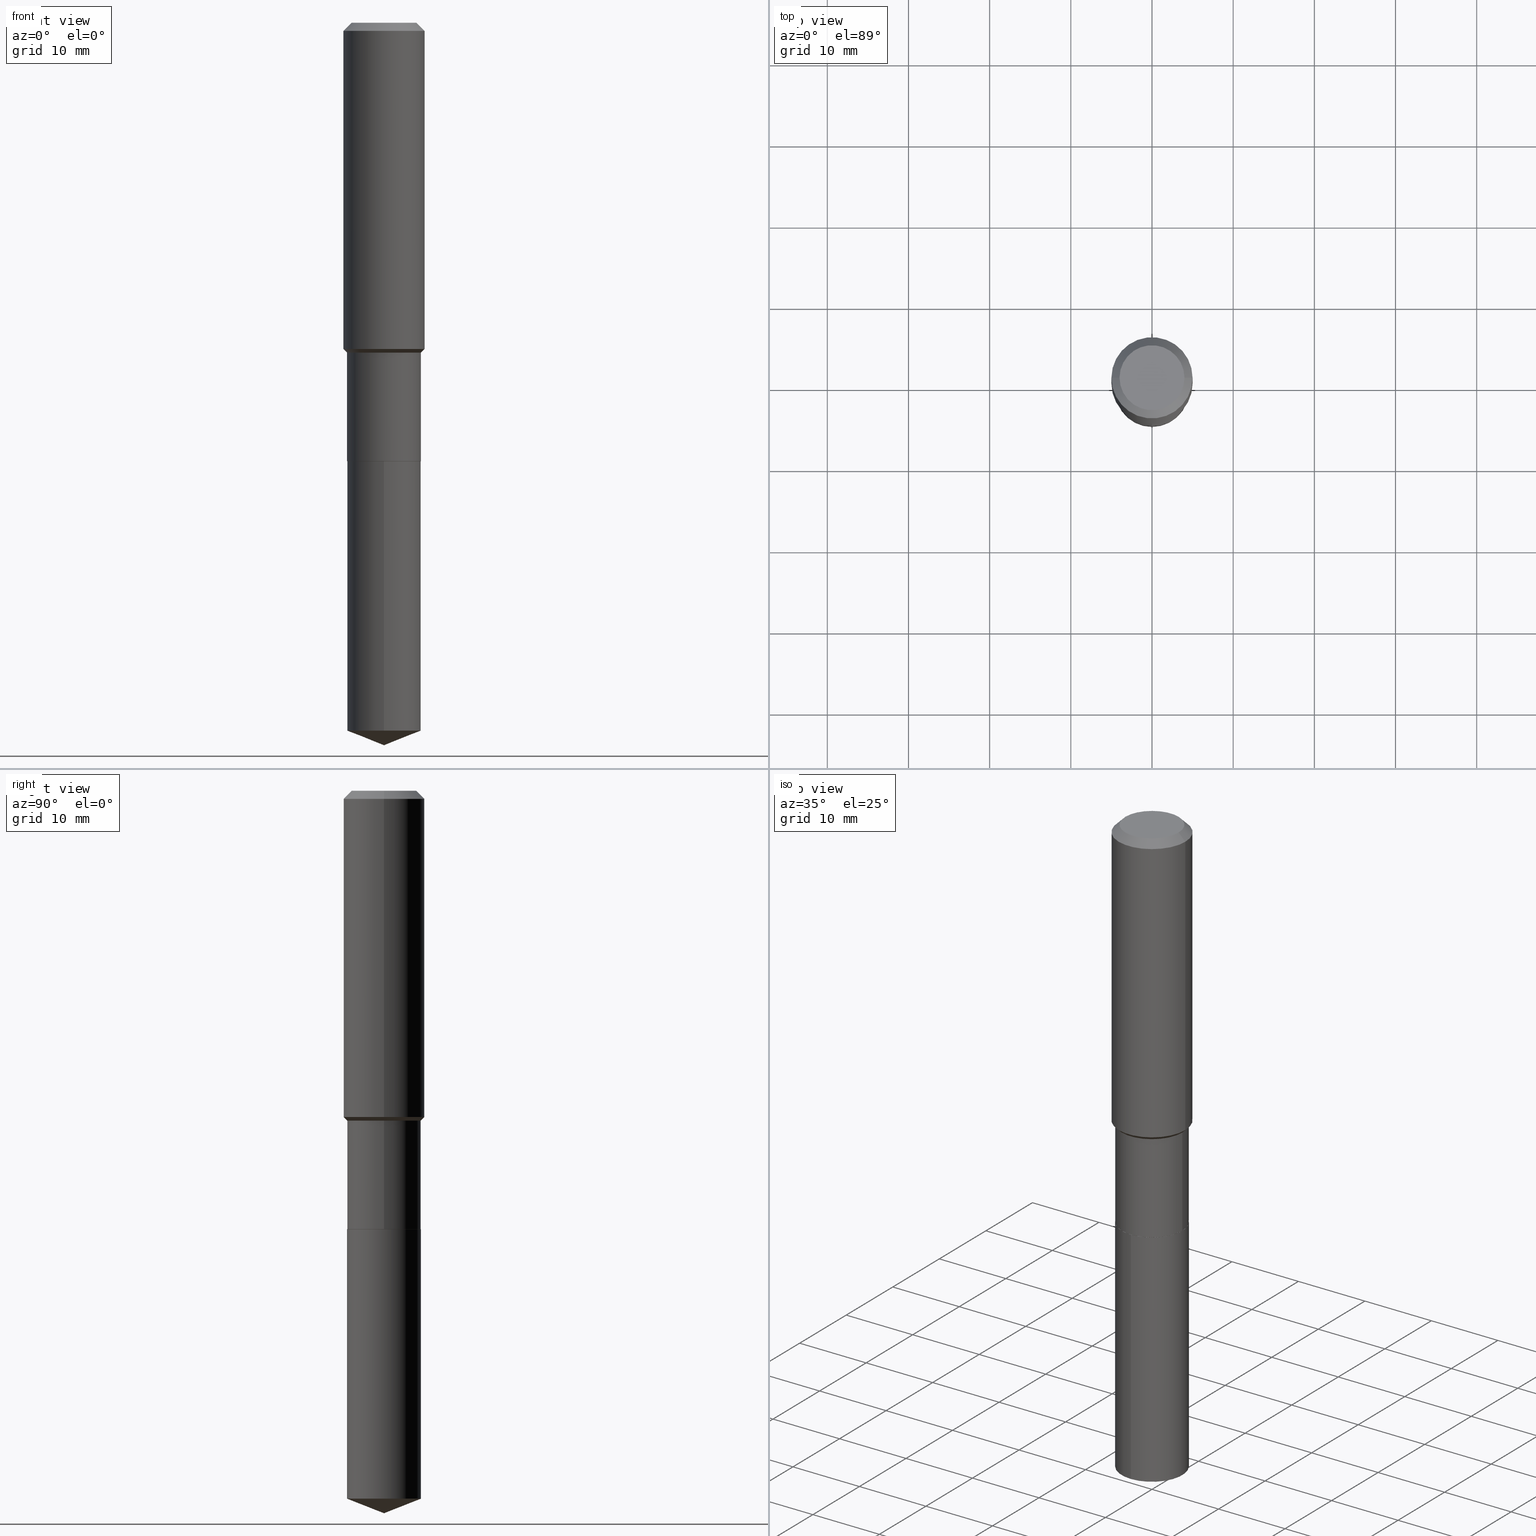
[diagram: canonical four-view strip — front | top / right | iso, engineering-drawing reading convention]
A machine part, canonical four-view strip (front | top / right | iso — engineering-drawing reading convention). The complete STEP part file that produces these views, byte-faithful:
ISO-10303-21;
HEADER;
FILE_DESCRIPTION (( 'STEP AP203' ),
    '1' );
FILE_NAME ('66461.STEP',
    '2024-04-24T23:09:21',
    ( '' ),
    ( '' ),
    'SwSTEP 2.0',
    'SolidWorks 2023',
    '' );
FILE_SCHEMA (( 'CONFIG_CONTROL_DESIGN' ));
ENDSEC;

DATA;
#1 = ORIENTED_EDGE ( 'NONE', *, *, #155, .T. ) ;
#2 = DIRECTION ( 'NONE',  ( -2.445468806185136597E-29, 3.491481338843145583E-15, 1.000000000000000000 ) ) ;
#3 = VERTEX_POINT ( 'NONE', #272 ) ;
#4 = DIRECTION ( 'NONE',  ( -6.982962677686265922E-15, -1.000000000000000000, 3.498627837350006195E-15 ) ) ;
#5 = CARTESIAN_POINT ( 'NONE',  ( 5.198822135068982087E-29, -7.422540178246643119E-15, -2.125899999999999679 ) ) ;
#6 = ORIENTED_EDGE ( 'NONE', *, *, #48, .T. ) ;
#7 = ORIENTED_EDGE ( 'NONE', *, *, #408, .T. ) ;
#8 = DIRECTION ( 'NONE',  ( 1.000000000000000000, -6.982962677686263555E-15, 0.000000000000000000 ) ) ;
#9 = EDGE_CURVE ( 'NONE', #251, #3, #194, .T. ) ;
#10 = VERTEX_POINT ( 'NONE', #343 ) ;
#11 = ORIENTED_EDGE ( 'NONE', *, *, #9, .F. ) ;
#12 = EDGE_LOOP ( 'NONE', ( #85, #350, #135 ) ) ;
#13 = CONICAL_SURFACE ( 'NONE', #42, 99.94676754583991851, 1.195550537616119291 ) ;
#14 = CARTESIAN_POINT ( 'NONE',  ( 9.627810689950954155E-31, -1.374596203102556547E-16, -0.03937000000000029365 ) ) ;
#15 = LINE ( 'NONE', #172, #57 ) ;
#16 = EDGE_LOOP ( 'NONE', ( #382, #208, #146 ) ) ;
#17 = AXIS2_PLACEMENT_3D ( 'NONE', #271, #312, #120 ) ;
#18 =( GEOMETRIC_REPRESENTATION_CONTEXT ( 3 ) GLOBAL_UNCERTAINTY_ASSIGNED_CONTEXT ( ( #435 ) ) GLOBAL_UNIT_ASSIGNED_CONTEXT ( ( #86, #434, #475 ) ) REPRESENTATION_CONTEXT ( 'NONE', 'WORKASPACE' ) );
#19 = DIRECTION ( 'NONE',  ( -2.445468806185136877E-29, 3.491481338843145188E-15, 1.000000000000000000 ) ) ;
#20 = CARTESIAN_POINT ( 'NONE',  ( 0.1791499999999999759, -1.250997763707494620E-15, 8.735670693838418171E-30 ) ) ;
#21 = ADVANCED_FACE ( 'NONE', ( #73 ), #388, .T. ) ;
#22 = VERTEX_POINT ( 'NONE', #314 ) ;
#23 = CARTESIAN_POINT ( 'NONE',  ( 1.272937311114303917E-15, 0.1791499999999926485, -2.125900000000000567 ) ) ;
#24 = MECHANICAL_CONTEXT ( 'NONE', #372, 'mechanical' ) ;
#25 = VERTEX_POINT ( 'NONE', #413 ) ;
#26 = CIRCLE ( 'NONE', #249, 0.1791500000000000314 ) ;
#27 = FACE_OUTER_BOUND ( 'NONE', #436, .T. ) ;
#28 = VECTOR ( 'NONE', #156, 39.37007874015748143 ) ;
#29 = ADVANCED_FACE ( 'NONE', ( #41 ), #35, .T. ) ;
#30 = APPROVAL ( #438, 'UNSPECIFIED' ) ;
#31 = CARTESIAN_POINT ( 'NONE',  ( -0.1786500000000000310, -6.150506353637112321E-15, -2.125899999999999679 ) ) ;
#32 = ORIENTED_EDGE ( 'NONE', *, *, #206, .T. ) ;
#33 = DIRECTION ( 'NONE',  ( -6.497071151882119836E-15, -0.9304175679820245737, 0.3665012267242972466 ) ) ;
#34 = DIRECTION ( 'NONE',  ( 2.445468806185136597E-29, -3.491481338843145583E-15, -1.000000000000000000 ) ) ;
#35 = CONICAL_SURFACE ( 'NONE', #243, 0.1968500000000000250, 0.7853981633974447263 ) ;
#36 = VECTOR ( 'NONE', #147, 39.37007874015748143 ) ;
#37 = DIRECTION ( 'NONE',  ( 1.000000000000000000, -6.982962677686266711E-15, 4.876176775795935793E-29 ) ) ;
#38 = CARTESIAN_POINT ( 'NONE',  ( 9.627810689950954155E-31, -1.374596203102556547E-16, -0.03937000000000029365 ) ) ;
#39 = FACE_OUTER_BOUND ( 'NONE', #77, .T. ) ;
#40 = DIRECTION ( 'NONE',  ( -2.445468806185136597E-29, 3.491481338843145583E-15, 1.000000000000000000 ) ) ;
#41 = FACE_OUTER_BOUND ( 'NONE', #188, .T. ) ;
#42 = AXIS2_PLACEMENT_3D ( 'NONE', #457, #78, #4 ) ;
#43 = CC_DESIGN_DATE_AND_TIME_ASSIGNMENT ( #187, #107, ( #264 ) ) ;
#44 = ORIENTED_EDGE ( 'NONE', *, *, #192, .F. ) ;
#45 = APPROVAL_DATE_TIME ( #205, #207 ) ;
#46 = CARTESIAN_POINT ( 'NONE',  ( -0.1574800000000000089, 1.168406772637159618E-15, 3.855188123707939751E-18 ) ) ;
#47 = DIRECTION ( 'NONE',  ( -2.445468806185136597E-29, 3.491481338843145583E-15, 1.000000000000000000 ) ) ;
#48 = EDGE_CURVE ( 'NONE', #22, #352, #142, .T. ) ;
#49 = CIRCLE ( 'NONE', #466, 0.1791500000000000314 ) ;
#50 = DIRECTION ( 'NONE',  ( -6.982962677686265922E-15, -1.000000000000000000, 3.498627837350006195E-15 ) ) ;
#51 = MANIFOLD_SOLID_BREP ( 'Body-Move/Copy2[2]', #290 ) ;
#52 = DIRECTION ( 'NONE',  ( 1.000000000000000000, -6.982962677686265922E-15, 0.000000000000000000 ) ) ;
#53 = CARTESIAN_POINT ( 'NONE',  ( 5.198822135068982087E-29, -7.422540178246643119E-15, -2.125899999999999679 ) ) ;
#54 = APPROVAL_STATUS ( 'not_yet_approved' ) ;
#55 = ADVANCED_BREP_SHAPE_REPRESENTATION ( '66461', ( #224, #51, #153 ), #18 ) ;
#56 = AXIS2_PLACEMENT_3D ( 'NONE', #389, #132, #252 ) ;
#57 = VECTOR ( 'NONE', #469, 39.37007874015748143 ) ;
#58 = DIRECTION ( 'NONE',  ( -2.445468806185136877E-29, 3.491481338843145188E-15, 1.000000000000000000 ) ) ;
#59 = PERSON_AND_ORGANIZATION ( #322, #218 ) ;
#60 = SECURITY_CLASSIFICATION ( '', '', #342 ) ;
#61 = DIRECTION ( 'NONE',  ( 1.000000000000000000, -6.982962677686267499E-15, 0.000000000000000000 ) ) ;
#62 = ORIENTED_EDGE ( 'NONE', *, *, #192, .T. ) ;
#63 = CARTESIAN_POINT ( 'NONE',  ( -0.1968500000000001082, 1.398703375343757985E-15, -9.682923725166787881E-30 ) ) ;
#64 = PERSON_AND_ORGANIZATION ( #322, #218 ) ;
#65 = ORIENTED_EDGE ( 'NONE', *, *, #83, .T. ) ;
#66 = CLOSED_SHELL ( 'NONE', ( #180, #409, #116, #376, #101 ) ) ;
#67 = CARTESIAN_POINT ( 'NONE',  ( 9.627810689950954155E-31, -1.374596203102556547E-16, -0.03937000000000029365 ) ) ;
#68 = LOCAL_TIME ( 19, 9, 21.00000000000000000, #220 ) ;
#69 = EDGE_LOOP ( 'NONE', ( #80, #423, #265, #226 ) ) ;
#70 = DIRECTION ( 'NONE',  ( -2.445468806185136597E-29, 3.491481338843145583E-15, 1.000000000000000000 ) ) ;
#71 = CARTESIAN_POINT ( 'NONE',  ( 0.1791499999999999482, -6.836669609588758122E-15, -1.599799999999999889 ) ) ;
#72 = EDGE_CURVE ( 'NONE', #288, #232, #26, .T. ) ;
#73 = FACE_OUTER_BOUND ( 'NONE', #273, .T. ) ;
#74 = ORIENTED_EDGE ( 'NONE', *, *, #83, .F. ) ;
#75 = PLANE ( 'NONE',  #17 ) ;
#76 = CIRCLE ( 'NONE', #143, 0.1786500000000000310 ) ;
#77 = EDGE_LOOP ( 'NONE', ( #111, #62, #149, #158 ) ) ;
#78 = DIRECTION ( 'NONE',  ( -2.445600057802036841E-29, 3.491293379057366203E-15, 1.000000000000000000 ) ) ;
#79 = FACE_OUTER_BOUND ( 'NONE', #297, .T. ) ;
#80 = ORIENTED_EDGE ( 'NONE', *, *, #293, .F. ) ;
#81 = DIRECTION ( 'NONE',  ( -1.000000000000000000, 6.982962677686265922E-15, 0.000000000000000000 ) ) ;
#82 = ADVANCED_FACE ( 'NONE', ( #79 ), #458, .F. ) ;
#83 = EDGE_CURVE ( 'NONE', #162, #160, #379, .T. ) ;
#84 = CARTESIAN_POINT ( 'NONE',  ( 3.912260996134981658E-29, -5.585671845881263700E-15, -1.599799999999999889 ) ) ;
#85 = ORIENTED_EDGE ( 'NONE', *, *, #425, .F. ) ;
#86 =( CONVERSION_BASED_UNIT ( 'INCH', #222 ) LENGTH_UNIT ( ) NAMED_UNIT ( #360 ) );
#87 = CIRCLE ( 'NONE', #184, 0.1791499999999999482 ) ;
#88 = PERSON_AND_ORGANIZATION ( #322, #218 ) ;
#89 = CYLINDRICAL_SURFACE ( 'NONE', #185, 0.1791500000000000314 ) ;
#90 = SHAPE_DEFINITION_REPRESENTATION ( #151, #55 ) ;
#91 = DIRECTION ( 'NONE',  ( 1.000000000000000000, -6.982962677686265133E-15, 0.000000000000000000 ) ) ;
#92 = CARTESIAN_POINT ( 'NONE',  ( 0.1968500000000001082, -1.374596203102542397E-15, 9.598753983154305062E-30 ) ) ;
#93 = VECTOR ( 'NONE', #426, 39.37007874015748143 ) ;
#94 = AXIS2_PLACEMENT_3D ( 'NONE', #14, #464, #320 ) ;
#95 = LOCAL_TIME ( 19, 9, 21.00000000000000000, #323 ) ;
#96 = CARTESIAN_POINT ( 'NONE',  ( 3.868976198265503885E-29, -5.523872626183740107E-15, -1.582099999999999840 ) ) ;
#97 = ORIENTED_EDGE ( 'NONE', *, *, #212, .F. ) ;
#98 = APPLICATION_PROTOCOL_DEFINITION ( 'international standard', 'config_control_design', 1994, #428 ) ;
#99 = EDGE_CURVE ( 'NONE', #160, #25, #309, .T. ) ;
#100 = PRODUCT_RELATED_PRODUCT_CATEGORY ( 'detail', '', ( #236 ) ) ;
#101 = ADVANCED_FACE ( 'NONE', ( #244 ), #75, .F. ) ;
#102 = CARTESIAN_POINT ( 'NONE',  ( -0.1786500000000000310, -6.153155580811223522E-15, -2.125899999999999679 ) ) ;
#103 = CIRCLE ( 'NONE', #126, 0.1968500000000002192 ) ;
#104 = LINE ( 'NONE', #328, #470 ) ;
#105 = ORIENTED_EDGE ( 'NONE', *, *, #136, .T. ) ;
#106 = CARTESIAN_POINT ( 'NONE',  ( -1.250997763707442752E-15, -0.1791500000000074422, -2.125899999999999235 ) ) ;
#107 = DATE_TIME_ROLE ( 'creation_date' ) ;
#108 = ORIENTED_EDGE ( 'NONE', *, *, #359, .T. ) ;
#109 = DIRECTION ( 'NONE',  ( 1.000000000000000000, -6.982962677686265922E-15, 0.000000000000000000 ) ) ;
#110 = DATE_AND_TIME ( #484, #385 ) ;
#111 = ORIENTED_EDGE ( 'NONE', *, *, #144, .T. ) ;
#112 = CARTESIAN_POINT ( 'NONE',  ( -1.250997763707410803E-15, -0.1791500000000119663, -3.433330938293583046 ) ) ;
#113 = AXIS2_PLACEMENT_3D ( 'NONE', #53, #214, #169 ) ;
#114 = DIRECTION ( 'NONE',  ( -2.445600057802036841E-29, 3.491293379057366203E-15, 1.000000000000000000 ) ) ;
#115 = VERTEX_POINT ( 'NONE', #241 ) ;
#116 = ADVANCED_FACE ( 'NONE', ( #242 ), #295, .T. ) ;
#117 = EDGE_CURVE ( 'NONE', #463, #166, #87, .T. ) ;
#118 = DIRECTION ( 'NONE',  ( -2.445468806185136597E-29, 3.491481338843145583E-15, 1.000000000000000000 ) ) ;
#119 = ORIENTED_EDGE ( 'NONE', *, *, #263, .T. ) ;
#120 = DIRECTION ( 'NONE',  ( 6.982962677686265922E-15, 1.000000000000000000, -3.491293379057366203E-15 ) ) ;
#121 = AXIS2_PLACEMENT_3D ( 'NONE', #167, #2, #415 ) ;
#122 = CARTESIAN_POINT ( 'NONE',  ( 8.568579986907819706E-29, -1.223394203829628348E-14, -3.503899999999999793 ) ) ;
#123 = DIRECTION ( 'NONE',  ( -2.438088387897960049E-29, 3.491481338843145188E-15, 1.000000000000000000 ) ) ;
#124 = EDGE_CURVE ( 'NONE', #115, #25, #471, .T. ) ;
#125 = DIRECTION ( 'NONE',  ( 1.000000000000000000, -6.982962677686265922E-15, 4.876176775795935793E-29 ) ) ;
#126 = AXIS2_PLACEMENT_3D ( 'NONE', #96, #261, #109 ) ;
#127 = EDGE_CURVE ( 'NONE', #411, #251, #248, .T. ) ;
#128 = DIRECTION ( 'NONE',  ( -2.445600057802036841E-29, 3.491293379057366203E-15, 1.000000000000000000 ) ) ;
#129 = CARTESIAN_POINT ( 'NONE',  ( 8.569138042532557080E-29, -1.223314287087910590E-14, -3.503899999999999793 ) ) ;
#130 = AXIS2_PLACEMENT_3D ( 'NONE', #390, #210, #91 ) ;
#131 = VECTOR ( 'NONE', #446, 39.37007874015747433 ) ;
#132 = DIRECTION ( 'NONE',  ( -2.445468806185136597E-29, 3.491481338843145583E-15, 1.000000000000000000 ) ) ;
#133 = PERSON_AND_ORGANIZATION ( #322, #218 ) ;
#134 = CC_DESIGN_DATE_AND_TIME_ASSIGNMENT ( #454, #421, ( #60 ) ) ;
#135 = ORIENTED_EDGE ( 'NONE', *, *, #48, .F. ) ;
#136 = EDGE_CURVE ( 'NONE', #411, #284, #344, .T. ) ;
#137 = DIRECTION ( 'NONE',  ( 2.438088387897960049E-29, -3.491481338843145188E-15, -1.000000000000000000 ) ) ;
#138 = PERSON_AND_ORGANIZATION ( #322, #218 ) ;
#139 = CARTESIAN_POINT ( 'NONE',  ( 5.197599400665889285E-29, -7.420794437577220826E-15, -2.125399999999999956 ) ) ;
#140 = CALENDAR_DATE ( 2024, 24, 4 ) ;
#141 = ORIENTED_EDGE ( 'NONE', *, *, #293, .T. ) ;
#142 = CIRCLE ( 'NONE', #319, 0.1791500000000000314 ) ;
#143 = AXIS2_PLACEMENT_3D ( 'NONE', #195, #315, #417 ) ;
#144 = EDGE_CURVE ( 'NONE', #166, #463, #353, .T. ) ;
#145 = DIRECTION ( 'NONE',  ( -2.445600057802036841E-29, 3.491293379057366203E-15, 1.000000000000000000 ) ) ;
#146 = ORIENTED_EDGE ( 'NONE', *, *, #263, .F. ) ;
#147 = DIRECTION ( 'NONE',  ( -0.7071067811866199593, 7.493145998870616062E-15, 0.7071067811864750752 ) ) ;
#148 = DIRECTION ( 'NONE',  ( 1.000000000000000000, 0.000000000000000000, 0.000000000000000000 ) ) ;
#149 = ORIENTED_EDGE ( 'NONE', *, *, #206, .F. ) ;
#150 = DIRECTION ( 'NONE',  ( -1.000000000000000000, 6.982962677686265922E-15, 0.000000000000000000 ) ) ;
#151 = PRODUCT_DEFINITION_SHAPE ( 'NONE', 'NONE',  #264 ) ;
#152 = DIRECTION ( 'NONE',  ( -2.445468806185136597E-29, 3.491481338843145583E-15, 1.000000000000000000 ) ) ;
#153 = AXIS2_PLACEMENT_3D ( 'NONE', #333, #427, #148 ) ;
#154 = APPROVAL_PERSON_ORGANIZATION ( #88, #207, #246 ) ;
#155 = EDGE_CURVE ( 'NONE', #374, #115, #403, .T. ) ;
#156 = DIRECTION ( 'NONE',  ( 0.7071067811865489050, -2.468850131082271655E-15, 0.7071067811865461294 ) ) ;
#157 = DIRECTION ( 'NONE',  ( -6.982962677686265133E-15, -1.000000000000000000, 3.049788438363675772E-15 ) ) ;
#158 = ORIENTED_EDGE ( 'NONE', *, *, #408, .F. ) ;
#159 = PERSON_AND_ORGANIZATION_ROLE ( 'design_supplier' ) ;
#160 = VERTEX_POINT ( 'NONE', #387 ) ;
#161 = ORIENTED_EDGE ( 'NONE', *, *, #280, .T. ) ;
#162 = VERTEX_POINT ( 'NONE', #46 ) ;
#163 = EDGE_CURVE ( 'NONE', #232, #288, #456, .T. ) ;
#164 = DIRECTION ( 'NONE',  ( -2.445468806185136597E-29, 3.491481338843145583E-15, 1.000000000000000000 ) ) ;
#165 = VECTOR ( 'NONE', #291, 39.37007874015748143 ) ;
#166 = VERTEX_POINT ( 'NONE', #289 ) ;
#167 = CARTESIAN_POINT ( 'NONE',  ( 5.198822135068982087E-29, -7.422540178246643119E-15, -2.125899999999999679 ) ) ;
#168 = EDGE_LOOP ( 'NONE', ( #65, #285 ) ) ;
#169 = DIRECTION ( 'NONE',  ( -6.982962677686265133E-15, -1.000000000000000000, 3.049788438363675772E-15 ) ) ;
#170 = ADVANCED_FACE ( 'NONE', ( #213 ), #356, .T. ) ;
#171 = AXIS2_PLACEMENT_3D ( 'NONE', #437, #70, #332 ) ;
#172 = CARTESIAN_POINT ( 'NONE',  ( -0.1791499999999999482, -4.312734534767044782E-15, -1.599799999999999889 ) ) ;
#173 = CC_DESIGN_PERSON_AND_ORGANIZATION_ASSIGNMENT ( #336, #234, ( #60 ) ) ;
#174 = EDGE_CURVE ( 'NONE', #10, #25, #364, .T. ) ;
#175 = APPROVAL_DATE_TIME ( #367, #30 ) ;
#176 = VECTOR ( 'NONE', #58, 39.37007874015748143 ) ;
#177 = FACE_OUTER_BOUND ( 'NONE', #168, .T. ) ;
#178 = FACE_OUTER_BOUND ( 'NONE', #199, .T. ) ;
#179 = ORIENTED_EDGE ( 'NONE', *, *, #280, .F. ) ;
#180 = ADVANCED_FACE ( 'NONE', ( #357 ), #89, .T. ) ;
#181 = CARTESIAN_POINT ( 'NONE',  ( 9.627810689950954155E-31, -1.374596203102556547E-16, -0.03937000000000029365 ) ) ;
#182 = PERSON_AND_ORGANIZATION_ROLE ( 'design_owner' ) ;
#183 = ORIENTED_EDGE ( 'NONE', *, *, #211, .T. ) ;
#184 = AXIS2_PLACEMENT_3D ( 'NONE', #362, #321, #282 ) ;
#185 = AXIS2_PLACEMENT_3D ( 'NONE', #468, #128, #287 ) ;
#186 = CYLINDRICAL_SURFACE ( 'NONE', #171, 0.1791499999999999759 ) ;
#187 = DATE_AND_TIME ( #140, #95 ) ;
#188 = EDGE_LOOP ( 'NONE', ( #405, #74, #474, #410 ) ) ;
#189 = CARTESIAN_POINT ( 'NONE',  ( 0.000000000000000000, 0.000000000000000000, 0.000000000000000000 ) ) ;
#190 = ORIENTED_EDGE ( 'NONE', *, *, #127, .F. ) ;
#191 = APPROVAL ( #54, 'UNSPECIFIED' ) ;
#192 = EDGE_CURVE ( 'NONE', #463, #374, #15, .T. ) ;
#193 = EDGE_LOOP ( 'NONE', ( #97, #1, #439, #257 ) ) ;
#194 = CIRCLE ( 'NONE', #442, 0.1791500000000000314 ) ;
#195 = CARTESIAN_POINT ( 'NONE',  ( 5.198822135068982087E-29, -7.422540178246643119E-15, -2.125899999999999679 ) ) ;
#196 = COORDINATED_UNIVERSAL_TIME_OFFSET ( 5, 0, .BEHIND. ) ;
#197 = AXIS2_PLACEMENT_3D ( 'NONE', #67, #429, #150 ) ;
#198 = APPROVAL_PERSON_ORGANIZATION ( #431, #191, #472 ) ;
#199 = EDGE_LOOP ( 'NONE', ( #444, #6, #161, #348 ) ) ;
#200 = DIRECTION ( 'NONE',  ( 1.000000000000000000, -6.982962677686265133E-15, 0.000000000000000000 ) ) ;
#201 = ORIENTED_EDGE ( 'NONE', *, *, #303, .F. ) ;
#202 = AXIS2_PLACEMENT_3D ( 'NONE', #84, #270, #200 ) ;
#203 = ORIENTED_EDGE ( 'NONE', *, *, #212, .T. ) ;
#204 = VERTEX_POINT ( 'NONE', #129 ) ;
#205 = DATE_AND_TIME ( #247, #338 ) ;
#206 = EDGE_CURVE ( 'NONE', #115, #374, #103, .T. ) ;
#207 = APPROVAL ( #461, 'UNSPECIFIED' ) ;
#208 = ORIENTED_EDGE ( 'NONE', *, *, #425, .T. ) ;
#209 = AXIS2_PLACEMENT_3D ( 'NONE', #452, #118, #460 ) ;
#210 = DIRECTION ( 'NONE',  ( -2.445468806185136597E-29, 3.491481338843145583E-15, 1.000000000000000000 ) ) ;
#211 = EDGE_CURVE ( 'NONE', #22, #288, #256, .T. ) ;
#212 = EDGE_CURVE ( 'NONE', #374, #10, #402, .T. ) ;
#213 = FACE_OUTER_BOUND ( 'NONE', #216, .T. ) ;
#214 = DIRECTION ( 'NONE',  ( -2.445600057802036841E-29, 3.491293379057366203E-15, 1.000000000000000000 ) ) ;
#215 = PERSON_AND_ORGANIZATION_ROLE ( 'creator' ) ;
#216 = EDGE_LOOP ( 'NONE', ( #32, #203, #239, #358 ) ) ;
#217 = AXIS2_PLACEMENT_3D ( 'NONE', #5, #164, #8 ) ;
#218 = ORGANIZATION ( 'UNSPECIFIED', 'UNSPECIFIED', '' ) ;
#219 = LINE ( 'NONE', #20, #176 ) ;
#220 = COORDINATED_UNIVERSAL_TIME_OFFSET ( 5, 0, .BEHIND. ) ;
#221 = ADVANCED_FACE ( 'NONE', ( #395 ), #396, .T. ) ;
#222 = LENGTH_MEASURE_WITH_UNIT ( LENGTH_MEASURE( 0.02539999999999999897 ), #335 );
#223 = FACE_OUTER_BOUND ( 'NONE', #278, .T. ) ;
#224 = MANIFOLD_SOLID_BREP ( 'Body-Move/Copy2[1]', #66 ) ;
#225 = CARTESIAN_POINT ( 'NONE',  ( 1.272937311114271377E-15, 0.1791499999999926207, -2.125900000000000567 ) ) ;
#226 = ORIENTED_EDGE ( 'NONE', *, *, #266, .F. ) ;
#227 = AXIS2_PLACEMENT_3D ( 'NONE', #383, #351, #50 ) ;
#228 = AXIS2_PLACEMENT_3D ( 'NONE', #369, #269, #373 ) ;
#229 = LINE ( 'NONE', #302, #165 ) ;
#230 = ORIENTED_EDGE ( 'NONE', *, *, #303, .T. ) ;
#231 = CARTESIAN_POINT ( 'NONE',  ( -0.1791499999999999759, 1.272937311114219312E-15, -8.812272214191663486E-30 ) ) ;
#232 = VERTEX_POINT ( 'NONE', #106 ) ;
#233 = FACE_OUTER_BOUND ( 'NONE', #16, .T. ) ;
#234 = PERSON_AND_ORGANIZATION_ROLE ( 'classification_officer' ) ;
#235 = DIRECTION ( 'NONE',  ( -6.982962677686265133E-15, -1.000000000000000000, 3.049788438363675772E-15 ) ) ;
#236 = PRODUCT ( '66461', '66461', '', ( #24 ) ) ;
#237 = DIRECTION ( 'NONE',  ( -6.982962677686265133E-15, -1.000000000000000000, 3.049788438363675772E-15 ) ) ;
#238 = AXIS2_PLACEMENT_3D ( 'NONE', #381, #152, #37 ) ;
#239 = ORIENTED_EDGE ( 'NONE', *, *, #347, .F. ) ;
#240 = LINE ( 'NONE', #122, #268 ) ;
#241 = CARTESIAN_POINT ( 'NONE',  ( 0.1968500000000002192, -6.898468829286282504E-15, -1.582099999999999840 ) ) ;
#242 = FACE_OUTER_BOUND ( 'NONE', #12, .T. ) ;
#243 = AXIS2_PLACEMENT_3D ( 'NONE', #38, #34, #81 ) ;
#244 = FACE_OUTER_BOUND ( 'NONE', #479, .T. ) ;
#245 = ORIENTED_EDGE ( 'NONE', *, *, #359, .F. ) ;
#246 = APPROVAL_ROLE ( '' ) ;
#247 = CALENDAR_DATE ( 2024, 24, 4 ) ;
#248 = LINE ( 'NONE', #422, #93 ) ;
#249 = AXIS2_PLACEMENT_3D ( 'NONE', #349, #448, #235 ) ;
#250 = VECTOR ( 'NONE', #145, 39.37007874015748143 ) ;
#251 = VERTEX_POINT ( 'NONE', #433 ) ;
#252 = DIRECTION ( 'NONE',  ( 1.000000000000000000, -6.982962677686263555E-15, 0.000000000000000000 ) ) ;
#253 = DIRECTION ( 'NONE',  ( -1.000000000000000000, 6.982962677686265922E-15, -4.876176775795935793E-29 ) ) ;
#254 = AXIS2_PLACEMENT_3D ( 'NONE', #189, #334, #430 ) ;
#255 = CC_DESIGN_APPROVAL ( #191, ( #365 ) ) ;
#256 = LINE ( 'NONE', #225, #250 ) ;
#257 = ORIENTED_EDGE ( 'NONE', *, *, #174, .F. ) ;
#258 = DIRECTION ( 'NONE',  ( -6.982962677686265133E-15, -1.000000000000000000, 3.049788438363675772E-15 ) ) ;
#259 = APPLICATION_PROTOCOL_DEFINITION ( 'international standard', 'config_control_design', 1994, #372 ) ;
#260 = EDGE_LOOP ( 'NONE', ( #119, #183, #449, #179 ) ) ;
#261 = DIRECTION ( 'NONE',  ( -2.445468806185136597E-29, 3.491481338843145583E-15, 1.000000000000000000 ) ) ;
#262 = APPROVAL_DATE_TIME ( #110, #191 ) ;
#263 = EDGE_CURVE ( 'NONE', #352, #22, #49, .T. ) ;
#264 = PRODUCT_DEFINITION ( 'UNKNOWN', '', #365, #485 ) ;
#265 = ORIENTED_EDGE ( 'NONE', *, *, #127, .T. ) ;
#266 = EDGE_CURVE ( 'NONE', #3, #251, #296, .T. ) ;
#267 = AXIS2_PLACEMENT_3D ( 'NONE', #277, #416, #378 ) ;
#268 = VECTOR ( 'NONE', #33, 39.37007874015748854 ) ;
#269 = DIRECTION ( 'NONE',  ( -2.445468806185136597E-29, 3.491481338843145583E-15, 1.000000000000000000 ) ) ;
#270 = DIRECTION ( 'NONE',  ( -2.445468806185136597E-29, 3.491481338843145583E-15, 1.000000000000000000 ) ) ;
#271 = CARTESIAN_POINT ( 'NONE',  ( 5.198822135068982087E-29, -7.422540178246643119E-15, -2.125899999999999679 ) ) ;
#272 = CARTESIAN_POINT ( 'NONE',  ( -0.1791500000000000314, -5.230295830615023345E-15, -2.125399999999999956 ) ) ;
#273 = EDGE_LOOP ( 'NONE', ( #105, #141, #11, #190 ) ) ;
#274 = CARTESIAN_POINT ( 'NONE',  ( 5.198822135068982087E-29, -7.422540178246643119E-15, -2.125899999999999679 ) ) ;
#275 = ORIENTED_EDGE ( 'NONE', *, *, #163, .T. ) ;
#276 = LINE ( 'NONE', #71, #28 ) ;
#277 = CARTESIAN_POINT ( 'NONE',  ( -9.427742298522567634E-47, 1.346031739168368355E-32, 3.855188123715870730E-18 ) ) ;
#278 = EDGE_LOOP ( 'NONE', ( #419, #108, #401, #201 ) ) ;
#279 = CC_DESIGN_PERSON_AND_ORGANIZATION_ASSIGNMENT ( #64, #182, ( #236 ) ) ;
#280 = EDGE_CURVE ( 'NONE', #352, #232, #104, .T. ) ;
#281 = VECTOR ( 'NONE', #418, 39.37007874015748143 ) ;
#282 = DIRECTION ( 'NONE',  ( 1.000000000000000000, -6.982962677686265133E-15, 0.000000000000000000 ) ) ;
#283 = AXIS2_PLACEMENT_3D ( 'NONE', #393, #286, #52 ) ;
#284 = VERTEX_POINT ( 'NONE', #31 ) ;
#285 = ORIENTED_EDGE ( 'NONE', *, *, #453, .T. ) ;
#286 = DIRECTION ( 'NONE',  ( -2.445468806185136597E-29, 3.491481338843145583E-15, 1.000000000000000000 ) ) ;
#287 = DIRECTION ( 'NONE',  ( -6.982962677686265133E-15, -1.000000000000000000, 3.049788438363675772E-15 ) ) ;
#288 = VERTEX_POINT ( 'NONE', #23 ) ;
#289 = CARTESIAN_POINT ( 'NONE',  ( 0.1791499999999999482, -6.836669609588758122E-15, -1.599799999999999889 ) ) ;
#290 = CLOSED_SHELL ( 'NONE', ( #21, #221, #170, #486, #340, #292, #317, #392, #29, #361, #82, #398 ) ) ;
#291 = DIRECTION ( 'NONE',  ( -0.7071067811865450192, 2.468850131082230634E-15, -0.7071067811865500152 ) ) ;
#292 = ADVANCED_FACE ( 'NONE', ( #27 ), #186, .T. ) ;
#293 = EDGE_CURVE ( 'NONE', #284, #3, #397, .T. ) ;
#294 = FACE_OUTER_BOUND ( 'NONE', #384, .T. ) ;
#295 = CONICAL_SURFACE ( 'NONE', #227, 99.94676754583991851, 1.195550537616119291 ) ;
#296 = CIRCLE ( 'NONE', #404, 0.1791500000000000314 ) ;
#297 = EDGE_LOOP ( 'NONE', ( #407, #459 ) ) ;
#298 = CC_DESIGN_APPROVAL ( #207, ( #60 ) ) ;
#299 = DIRECTION ( 'NONE',  ( -2.445468806185136877E-29, 3.491481338843145188E-15, 1.000000000000000000 ) ) ;
#300 = ORIENTED_EDGE ( 'NONE', *, *, #155, .F. ) ;
#301 = EDGE_CURVE ( 'NONE', #162, #10, #229, .T. ) ;
#302 = CARTESIAN_POINT ( 'NONE',  ( -0.1968500000000000250, 1.237136582792286225E-15, -0.03937000000000029365 ) ) ;
#303 = EDGE_CURVE ( 'NONE', #251, #166, #219, .T. ) ;
#304 = DIRECTION ( 'NONE',  ( -2.445468806185136597E-29, 3.491481338843145583E-15, 1.000000000000000000 ) ) ;
#305 = CONICAL_SURFACE ( 'NONE', #202, 0.1791499999999999482, 0.7853981633974502774 ) ;
#306 = LINE ( 'NONE', #377, #131 ) ;
#307 = CARTESIAN_POINT ( 'NONE',  ( 8.396275313331941600E-29, -1.198716515668579060E-14, -3.433330938293583490 ) ) ;
#308 = FACE_OUTER_BOUND ( 'NONE', #69, .T. ) ;
#309 = LINE ( 'NONE', #451, #281 ) ;
#310 = ORIENTED_EDGE ( 'NONE', *, *, #99, .T. ) ;
#311 = CARTESIAN_POINT ( 'NONE',  ( -0.1791499999999999482, -5.230295830615023345E-15, -1.599799999999999889 ) ) ;
#312 = DIRECTION ( 'NONE',  ( 2.445600057802036561E-29, -3.491293379057366203E-15, -1.000000000000000000 ) ) ;
#313 = ORIENTED_EDGE ( 'NONE', *, *, #72, .T. ) ;
#314 = CARTESIAN_POINT ( 'NONE',  ( 1.272937311114303326E-15, 0.1791499999999880688, -3.433330938293583934 ) ) ;
#315 = DIRECTION ( 'NONE',  ( -2.445468806185136597E-29, 3.491481338843145583E-15, 1.000000000000000000 ) ) ;
#316 = DIRECTION ( 'NONE',  ( 1.000000000000000000, -6.982962677686267499E-15, 0.000000000000000000 ) ) ;
#317 = ADVANCED_FACE ( 'NONE', ( #294 ), #481, .T. ) ;
#318 = CARTESIAN_POINT ( 'NONE',  ( 0.000000000000000000, 0.000000000000000000, 0.000000000000000000 ) ) ;
#319 = AXIS2_PLACEMENT_3D ( 'NONE', #307, #462, #157 ) ;
#320 = DIRECTION ( 'NONE',  ( 1.000000000000000000, -6.982962677686265922E-15, 0.000000000000000000 ) ) ;
#321 = DIRECTION ( 'NONE',  ( -2.445468806185136597E-29, 3.491481338843145583E-15, 1.000000000000000000 ) ) ;
#322 = PERSON ( 'UNSPECIFIED', 'UNSPECIFIED', 'UNSPECIFIED', ('UNSPECIFIED'), ('UNSPECIFIED'), ('UNSPECIFIED') ) ;
#323 = COORDINATED_UNIVERSAL_TIME_OFFSET ( 5, 0, .BEHIND. ) ;
#324 = AXIS2_PLACEMENT_3D ( 'NONE', #476, #137, #253 ) ;
#325 = PLANE ( 'NONE',  #324 ) ;
#326 = CYLINDRICAL_SURFACE ( 'NONE', #424, 0.1791500000000000314 ) ;
#327 = PERSON_AND_ORGANIZATION_ROLE ( 'creator' ) ;
#328 = CARTESIAN_POINT ( 'NONE',  ( -1.250997763707442752E-15, -0.1791500000000074422, -2.125899999999999235 ) ) ;
#329 = CALENDAR_DATE ( 2024, 24, 4 ) ;
#330 = AXIS2_PLACEMENT_3D ( 'NONE', #181, #304, #440 ) ;
#331 = APPROVAL_PERSON_ORGANIZATION ( #138, #30, #394 ) ;
#332 = DIRECTION ( 'NONE',  ( 1.000000000000000000, -6.982962677686267499E-15, 4.876176775795935793E-29 ) ) ;
#333 = CARTESIAN_POINT ( 'NONE',  ( 0.000000000000000000, 0.000000000000000000, 0.000000000000000000 ) ) ;
#334 = DIRECTION ( 'NONE',  ( -2.445468806185136597E-29, 3.491481338843145583E-15, 1.000000000000000000 ) ) ;
#335 =( LENGTH_UNIT ( ) NAMED_UNIT ( * ) SI_UNIT ( $, .METRE. ) );
#336 = PERSON_AND_ORGANIZATION ( #322, #218 ) ;
#337 = AXIS2_PLACEMENT_3D ( 'NONE', #318, #47, #355 ) ;
#338 = LOCAL_TIME ( 19, 9, 21.00000000000000000, #386 ) ;
#339 = CARTESIAN_POINT ( 'NONE',  ( 5.197599400665889285E-29, -7.420794437577220826E-15, -2.125399999999999956 ) ) ;
#340 = ADVANCED_FACE ( 'NONE', ( #223 ), #487, .T. ) ;
#341 = CYLINDRICAL_SURFACE ( 'NONE', #238, 0.1968500000000001082 ) ;
#342 = SECURITY_CLASSIFICATION_LEVEL ( 'unclassified' ) ;
#343 = CARTESIAN_POINT ( 'NONE',  ( -0.1968500000000000250, -1.431962747903239464E-15, -0.03937000000000029365 ) ) ;
#344 = CIRCLE ( 'NONE', #56, 0.1786500000000000310 ) ;
#345 = CC_DESIGN_PERSON_AND_ORGANIZATION_ASSIGNMENT ( #59, #327, ( #264 ) ) ;
#346 = FACE_OUTER_BOUND ( 'NONE', #193, .T. ) ;
#347 = EDGE_CURVE ( 'NONE', #25, #10, #354, .T. ) ;
#348 = ORIENTED_EDGE ( 'NONE', *, *, #72, .F. ) ;
#349 = CARTESIAN_POINT ( 'NONE',  ( 5.198822135068982087E-29, -7.422540178246643119E-15, -2.125899999999999679 ) ) ;
#350 = ORIENTED_EDGE ( 'NONE', *, *, #465, .T. ) ;
#351 = DIRECTION ( 'NONE',  ( -2.445600057802036841E-29, 3.491293379057366203E-15, 1.000000000000000000 ) ) ;
#352 = VERTEX_POINT ( 'NONE', #112 ) ;
#353 = CIRCLE ( 'NONE', #130, 0.1791499999999999482 ) ;
#354 = CIRCLE ( 'NONE', #330, 0.1968500000000000250 ) ;
#355 = DIRECTION ( 'NONE',  ( 1.000000000000000000, -6.982962677686266711E-15, 4.876176775795935793E-29 ) ) ;
#356 = CYLINDRICAL_SURFACE ( 'NONE', #337, 0.1968500000000001082 ) ;
#357 = FACE_OUTER_BOUND ( 'NONE', #260, .T. ) ;
#358 = ORIENTED_EDGE ( 'NONE', *, *, #124, .F. ) ;
#359 = EDGE_CURVE ( 'NONE', #3, #463, #406, .T. ) ;
#360 = DIMENSIONAL_EXPONENTS ( 1.000000000000000000, 0.000000000000000000, 0.000000000000000000, 0.000000000000000000, 0.000000000000000000, 0.000000000000000000, 0.000000000000000000 ) ;
#361 = ADVANCED_FACE ( 'NONE', ( #177 ), #325, .F. ) ;
#362 = CARTESIAN_POINT ( 'NONE',  ( 3.912260996134981658E-29, -5.585671845881263700E-15, -1.599799999999999889 ) ) ;
#363 = PERSON_AND_ORGANIZATION ( #322, #218 ) ;
#364 = CIRCLE ( 'NONE', #94, 0.1968500000000000250 ) ;
#365 = PRODUCT_DEFINITION_FORMATION_WITH_SPECIFIED_SOURCE ( 'ANY', '', #236, .NOT_KNOWN. ) ;
#366 = CARTESIAN_POINT ( 'NONE',  ( -0.1968500000000002192, -4.125169250839980741E-15, -1.582099999999999840 ) ) ;
#367 = DATE_AND_TIME ( #329, #68 ) ;
#368 = ORIENTED_EDGE ( 'NONE', *, *, #117, .T. ) ;
#369 = CARTESIAN_POINT ( 'NONE',  ( 3.912260996134981658E-29, -5.585671845881263700E-15, -1.599799999999999889 ) ) ;
#370 = DIRECTION ( 'NONE',  ( -2.445600057802036841E-29, 3.491293379057366203E-15, 1.000000000000000000 ) ) ;
#371 = CC_DESIGN_APPROVAL ( #30, ( #264 ) ) ;
#372 = APPLICATION_CONTEXT ( 'configuration controlled 3d designs of mechanical parts and assemblies' ) ;
#373 = DIRECTION ( 'NONE',  ( 1.000000000000000000, -6.982962677686265133E-15, 0.000000000000000000 ) ) ;
#374 = VERTEX_POINT ( 'NONE', #366 ) ;
#375 = ORIENTED_EDGE ( 'NONE', *, *, #301, .F. ) ;
#376 = ADVANCED_FACE ( 'NONE', ( #178 ), #326, .T. ) ;
#377 = CARTESIAN_POINT ( 'NONE',  ( 8.569142936021653677E-29, -1.223314287087910590E-14, -3.503899999999999793 ) ) ;
#378 = DIRECTION ( 'NONE',  ( 1.000000000000000000, -6.982962677686265922E-15, 4.876223630392693006E-29 ) ) ;
#379 = CIRCLE ( 'NONE', #267, 0.1574800000000000089 ) ;
#380 = VECTOR ( 'NONE', #299, 39.37007874015748143 ) ;
#381 = CARTESIAN_POINT ( 'NONE',  ( 0.000000000000000000, 0.000000000000000000, 0.000000000000000000 ) ) ;
#382 = ORIENTED_EDGE ( 'NONE', *, *, #465, .F. ) ;
#383 = CARTESIAN_POINT ( 'NONE',  ( -8.771460782787969861E-28, 1.252189527838912910E-13, 35.86617874015747987 ) ) ;
#384 = EDGE_LOOP ( 'NONE', ( #44, #368, #7, #300 ) ) ;
#385 = LOCAL_TIME ( 19, 9, 21.00000000000000000, #477 ) ;
#386 = COORDINATED_UNIVERSAL_TIME_OFFSET ( 5, 0, .BEHIND. ) ;
#387 = CARTESIAN_POINT ( 'NONE',  ( 0.1574800000000000089, -1.284169937930321189E-15, 3.855188123724205385E-18 ) ) ;
#388 = CONICAL_SURFACE ( 'NONE', #217, 0.1786500000000000310, 0.7853981633975507526 ) ;
#389 = CARTESIAN_POINT ( 'NONE',  ( 5.198822135068982087E-29, -7.422540178246643119E-15, -2.125899999999999679 ) ) ;
#390 = CARTESIAN_POINT ( 'NONE',  ( 3.912260996134981658E-29, -5.585671845881263700E-15, -1.599799999999999889 ) ) ;
#391 = CC_DESIGN_PERSON_AND_ORGANIZATION_ASSIGNMENT ( #363, #159, ( #365 ) ) ;
#392 = ADVANCED_FACE ( 'NONE', ( #346 ), #341, .T. ) ;
#393 = CARTESIAN_POINT ( 'NONE',  ( 3.868976198265503885E-29, -5.523872626183740107E-15, -1.582099999999999840 ) ) ;
#394 = APPROVAL_ROLE ( '' ) ;
#395 = FACE_OUTER_BOUND ( 'NONE', #399, .T. ) ;
#396 = CONICAL_SURFACE ( 'NONE', #197, 0.1968500000000000250, 0.7853981633974447263 ) ;
#397 = LINE ( 'NONE', #102, #36 ) ;
#398 = ADVANCED_FACE ( 'NONE', ( #308 ), #443, .T. ) ;
#399 = EDGE_LOOP ( 'NONE', ( #420, #310, #482, #375 ) ) ;
#400 = DIRECTION ( 'NONE',  ( -2.445468806185136597E-29, 3.491481338843145583E-15, 1.000000000000000000 ) ) ;
#401 = ORIENTED_EDGE ( 'NONE', *, *, #144, .F. ) ;
#402 = LINE ( 'NONE', #63, #380 ) ;
#403 = CIRCLE ( 'NONE', #283, 0.1968500000000002192 ) ;
#404 = AXIS2_PLACEMENT_3D ( 'NONE', #139, #400, #61 ) ;
#405 = ORIENTED_EDGE ( 'NONE', *, *, #99, .F. ) ;
#406 = LINE ( 'NONE', #231, #489 ) ;
#407 = ORIENTED_EDGE ( 'NONE', *, *, #136, .F. ) ;
#408 = EDGE_CURVE ( 'NONE', #166, #115, #276, .T. ) ;
#409 = ADVANCED_FACE ( 'NONE', ( #233 ), #13, .T. ) ;
#410 = ORIENTED_EDGE ( 'NONE', *, *, #174, .T. ) ;
#411 = VERTEX_POINT ( 'NONE', #450 ) ;
#412 = CIRCLE ( 'NONE', #209, 0.1574800000000000089 ) ;
#413 = CARTESIAN_POINT ( 'NONE',  ( 0.1968500000000000250, -1.512055823412797189E-15, -0.03937000000000029365 ) ) ;
#414 = ORIENTED_EDGE ( 'NONE', *, *, #117, .F. ) ;
#415 = DIRECTION ( 'NONE',  ( 1.000000000000000000, -6.982962677686263555E-15, 0.000000000000000000 ) ) ;
#416 = DIRECTION ( 'NONE',  ( -2.445468806185136597E-29, 3.491481338843145583E-15, 1.000000000000000000 ) ) ;
#417 = DIRECTION ( 'NONE',  ( 1.000000000000000000, -6.982962677686263555E-15, 0.000000000000000000 ) ) ;
#418 = DIRECTION ( 'NONE',  ( 0.7071067811865450192, -7.319954787623246579E-15, -0.7071067811865500152 ) ) ;
#419 = ORIENTED_EDGE ( 'NONE', *, *, #9, .T. ) ;
#420 = ORIENTED_EDGE ( 'NONE', *, *, #453, .F. ) ;
#421 = DATE_TIME_ROLE ( 'classification_date' ) ;
#422 = CARTESIAN_POINT ( 'NONE',  ( 0.1786500000000000310, -8.670046460615294534E-15, -2.125899999999999679 ) ) ;
#423 = ORIENTED_EDGE ( 'NONE', *, *, #445, .T. ) ;
#424 = AXIS2_PLACEMENT_3D ( 'NONE', #478, #114, #237 ) ;
#425 = EDGE_CURVE ( 'NONE', #204, #22, #306, .T. ) ;
#426 = DIRECTION ( 'NONE',  ( 0.7071067811866199593, -2.468850131083015945E-15, 0.7071067811864750752 ) ) ;
#427 = DIRECTION ( 'NONE',  ( 0.000000000000000000, 0.000000000000000000, 1.000000000000000000 ) ) ;
#428 = APPLICATION_CONTEXT ( 'configuration controlled 3d designs of mechanical parts and assemblies' ) ;
#429 = DIRECTION ( 'NONE',  ( 2.445468806185136597E-29, -3.491481338843145583E-15, -1.000000000000000000 ) ) ;
#430 = DIRECTION ( 'NONE',  ( 1.000000000000000000, -6.982962677686267499E-15, 4.876176775795935793E-29 ) ) ;
#431 = PERSON_AND_ORGANIZATION ( #322, #218 ) ;
#432 = ORIENTED_EDGE ( 'NONE', *, *, #266, .T. ) ;
#433 = CARTESIAN_POINT ( 'NONE',  ( 0.1791500000000000314, -8.671792201284716827E-15, -2.125399999999999956 ) ) ;
#434 =( NAMED_UNIT ( * ) PLANE_ANGLE_UNIT ( ) SI_UNIT ( $, .RADIAN. ) );
#435 = UNCERTAINTY_MEASURE_WITH_UNIT (LENGTH_MEASURE( 1.000000000000000082E-05 ), #86, 'distance_accuracy_value', 'NONE');
#436 = EDGE_LOOP ( 'NONE', ( #245, #432, #230, #414 ) ) ;
#437 = CARTESIAN_POINT ( 'NONE',  ( 0.000000000000000000, 0.000000000000000000, 0.000000000000000000 ) ) ;
#438 = APPROVAL_STATUS ( 'not_yet_approved' ) ;
#439 = ORIENTED_EDGE ( 'NONE', *, *, #124, .T. ) ;
#440 = DIRECTION ( 'NONE',  ( 1.000000000000000000, -6.982962677686265922E-15, 0.000000000000000000 ) ) ;
#441 = CC_DESIGN_PERSON_AND_ORGANIZATION_ASSIGNMENT ( #133, #215, ( #365 ) ) ;
#442 = AXIS2_PLACEMENT_3D ( 'NONE', #339, #40, #316 ) ;
#443 = CONICAL_SURFACE ( 'NONE', #121, 0.1786500000000000310, 0.7853981633975507526 ) ;
#444 = ORIENTED_EDGE ( 'NONE', *, *, #211, .F. ) ;
#445 = EDGE_CURVE ( 'NONE', #284, #411, #76, .T. ) ;
#446 = DIRECTION ( 'NONE',  ( 6.611014441532068167E-15, 0.9304175679820272382, 0.3665012267242907518 ) ) ;
#447 = CALENDAR_DATE ( 2024, 24, 4 ) ;
#448 = DIRECTION ( 'NONE',  ( -2.445600057802036841E-29, 3.491293379057366203E-15, 1.000000000000000000 ) ) ;
#449 = ORIENTED_EDGE ( 'NONE', *, *, #163, .F. ) ;
#450 = CARTESIAN_POINT ( 'NONE',  ( 0.1786500000000000310, -8.670046460615294534E-15, -2.125899999999999679 ) ) ;
#451 = CARTESIAN_POINT ( 'NONE',  ( 0.1968500000000000250, -1.487948651171581601E-15, -0.03937000000000029365 ) ) ;
#452 = CARTESIAN_POINT ( 'NONE',  ( -9.427742298522567634E-47, 1.346031739168368355E-32, 3.855188123715870730E-18 ) ) ;
#453 = EDGE_CURVE ( 'NONE', #160, #162, #412, .T. ) ;
#454 = DATE_AND_TIME ( #447, #490 ) ;
#455 = VECTOR ( 'NONE', #467, 39.37007874015748143 ) ;
#456 = CIRCLE ( 'NONE', #113, 0.1791500000000000314 ) ;
#457 = CARTESIAN_POINT ( 'NONE',  ( -8.771460782787969861E-28, 1.252189527838912910E-13, 35.86617874015747987 ) ) ;
#458 = PLANE ( 'NONE',  #488 ) ;
#459 = ORIENTED_EDGE ( 'NONE', *, *, #445, .F. ) ;
#460 = DIRECTION ( 'NONE',  ( 1.000000000000000000, -6.982962677686265922E-15, 4.876223630392693006E-29 ) ) ;
#461 = APPROVAL_STATUS ( 'not_yet_approved' ) ;
#462 = DIRECTION ( 'NONE',  ( -2.445600057802036841E-29, 3.491293379057366203E-15, 1.000000000000000000 ) ) ;
#463 = VERTEX_POINT ( 'NONE', #311 ) ;
#464 = DIRECTION ( 'NONE',  ( -2.445468806185136597E-29, 3.491481338843145583E-15, 1.000000000000000000 ) ) ;
#465 = EDGE_CURVE ( 'NONE', #204, #352, #240, .T. ) ;
#466 = AXIS2_PLACEMENT_3D ( 'NONE', #483, #480, #258 ) ;
#467 = DIRECTION ( 'NONE',  ( -2.445468806185136877E-29, 3.491481338843145188E-15, 1.000000000000000000 ) ) ;
#468 = CARTESIAN_POINT ( 'NONE',  ( 5.198822135068982087E-29, -7.422540178246643119E-15, -2.125899999999999679 ) ) ;
#469 = DIRECTION ( 'NONE',  ( -0.7071067811865489050, 7.493145998870358893E-15, 0.7071067811865461294 ) ) ;
#470 = VECTOR ( 'NONE', #370, 39.37007874015748143 ) ;
#471 = LINE ( 'NONE', #92, #455 ) ;
#472 = APPROVAL_ROLE ( '' ) ;
#473 = CC_DESIGN_SECURITY_CLASSIFICATION ( #60, ( #365 ) ) ;
#474 = ORIENTED_EDGE ( 'NONE', *, *, #301, .T. ) ;
#475 =( NAMED_UNIT ( * ) SI_UNIT ( $, .STERADIAN. ) SOLID_ANGLE_UNIT ( ) );
#476 = CARTESIAN_POINT ( 'NONE',  ( -4.713871149261283817E-47, 6.730158695841841775E-33, 1.927594061857935365E-18 ) ) ;
#477 = COORDINATED_UNIVERSAL_TIME_OFFSET ( 5, 0, .BEHIND. ) ;
#478 = CARTESIAN_POINT ( 'NONE',  ( 5.198822135068982087E-29, -7.422540178246643119E-15, -2.125899999999999679 ) ) ;
#479 = EDGE_LOOP ( 'NONE', ( #275, #313 ) ) ;
#480 = DIRECTION ( 'NONE',  ( -2.445600057802036841E-29, 3.491293379057366203E-15, 1.000000000000000000 ) ) ;
#481 = CONICAL_SURFACE ( 'NONE', #228, 0.1791499999999999482, 0.7853981633974502774 ) ;
#482 = ORIENTED_EDGE ( 'NONE', *, *, #347, .T. ) ;
#483 = CARTESIAN_POINT ( 'NONE',  ( 8.396275313331941600E-29, -1.198716515668579060E-14, -3.433330938293583490 ) ) ;
#484 = CALENDAR_DATE ( 2024, 24, 4 ) ;
#485 = DESIGN_CONTEXT ( 'detailed design', #428, 'design' ) ;
#486 = ADVANCED_FACE ( 'NONE', ( #39 ), #305, .T. ) ;
#487 = CYLINDRICAL_SURFACE ( 'NONE', #254, 0.1791499999999999759 ) ;
#488 = AXIS2_PLACEMENT_3D ( 'NONE', #274, #123, #125 ) ;
#489 = VECTOR ( 'NONE', #19, 39.37007874015748143 ) ;
#490 = LOCAL_TIME ( 19, 9, 21.00000000000000000, #196 ) ;
ENDSEC;
END-ISO-10303-21;
